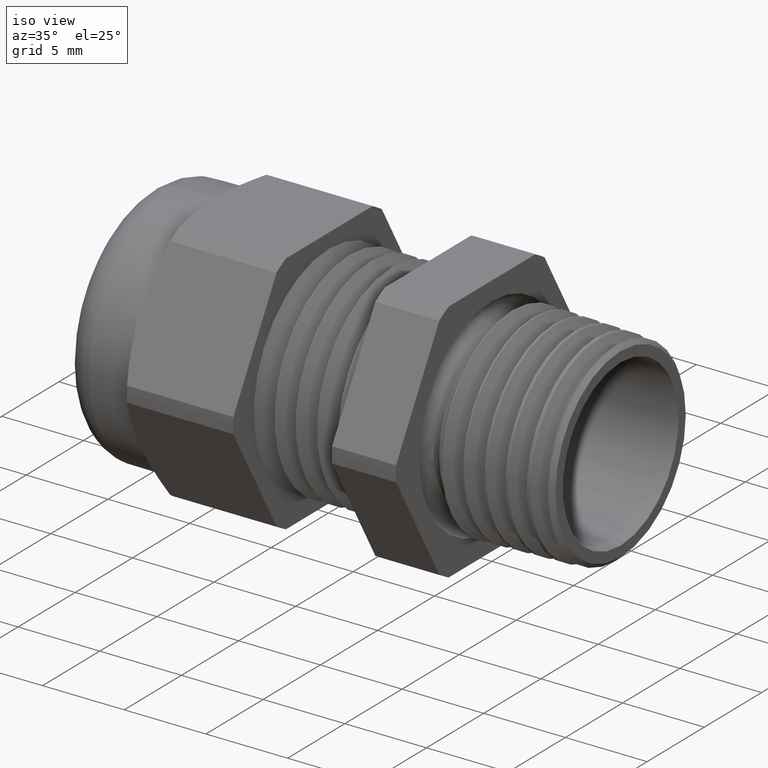
[diagram: clean part render]
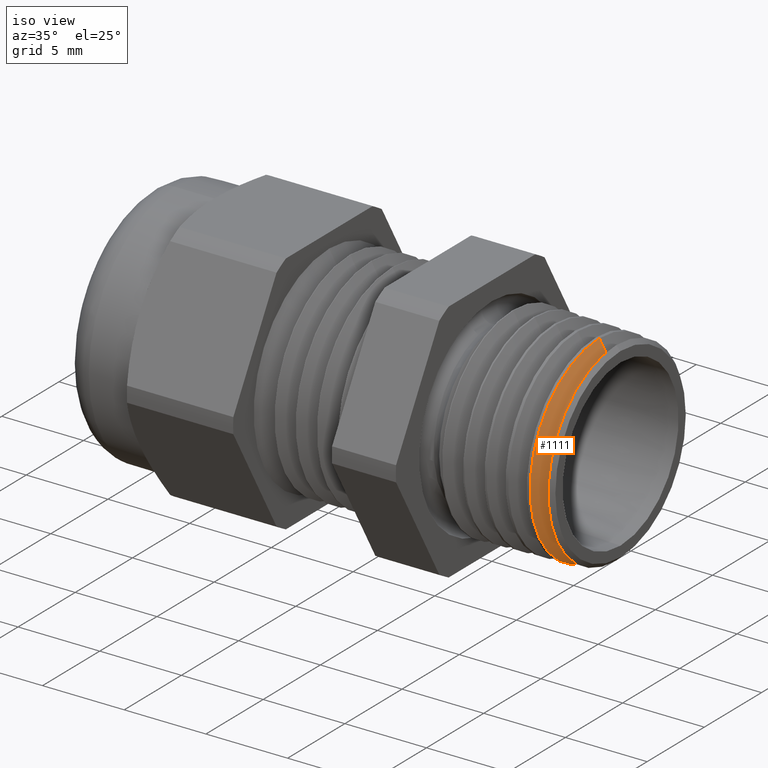
[diagram: same view with one face highlighted and labeled with its STEP entity id]
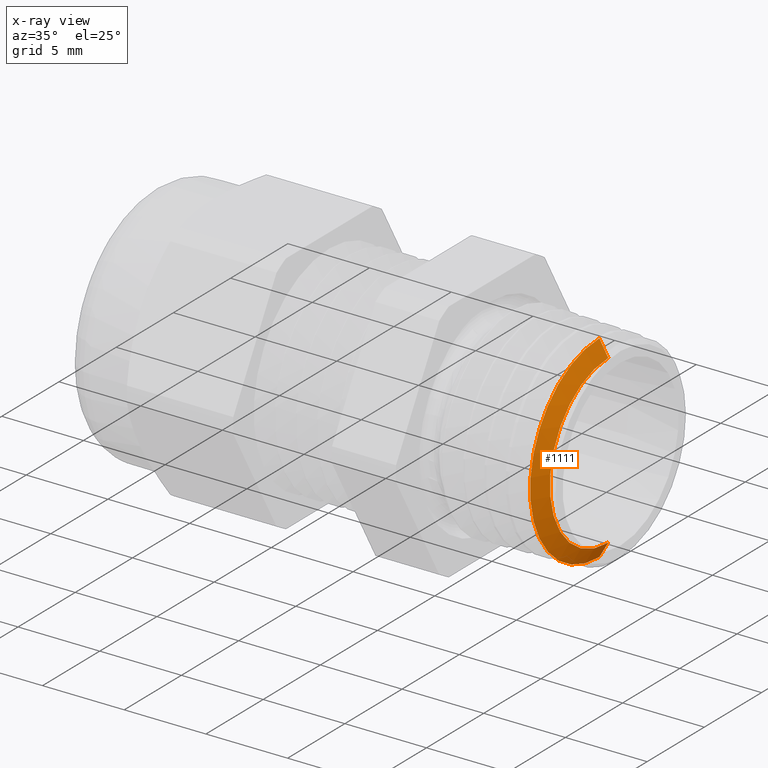
[diagram: x-ray of the same camera — body ghosted, the highlighted face saturated]
A machine part, iso view. The second image highlights one B-rep face of the part: STEP entity #1111.
The next image is the same camera in x-ray: the body ghosted, the highlighted face saturated — about 0% of this face is hidden behind the body in this view.
In plain terms, the highlighted conical surface has half-angle 60 deg.
Its self-contained STEP definition (entity closure, byte-faithful):
#62 = EDGE_CURVE ( 'NONE', #148, #63, #1327, .T. ) ;
#63 = VERTEX_POINT ( 'NONE', #1323 ) ;
#66 = VERTEX_POINT ( 'NONE', #1380 ) ;
#147 = VERTEX_POINT ( 'NONE', #1495 ) ;
#148 = VERTEX_POINT ( 'NONE', #1494 ) ;
#431 = EDGE_CURVE ( 'NONE', #147, #66, #2082, .T. ) ;
#554 = EDGE_CURVE ( 'NONE', #66, #63, #2288, .T. ) ;
#1111 = ADVANCED_FACE ( 'NONE', ( #3235 ), #3234, .T. ) ;
#1112 = EDGE_LOOP ( 'NONE', ( #1113, #1114, #1116, #1119 ) ) ;
#1113 = ORIENTED_EDGE ( 'NONE', *, *, #62, .F. ) ;
#1114 = ORIENTED_EDGE ( 'NONE', *, *, #1115, .T. ) ;
#1115 = EDGE_CURVE ( 'NONE', #148, #147, #3229, .T. ) ;
#1116 = ORIENTED_EDGE ( 'NONE', *, *, #431, .T. ) ;
#1119 = ORIENTED_EDGE ( 'NONE', *, *, #554, .T. ) ;
#1323 = CARTESIAN_POINT ( 'NONE',  ( 0.2589143838735094000, 2.918625249945247100E-017, -0.2382200882507539700 ) ) ;
#1324 = DIRECTION ( 'NONE',  ( -0.4999999999999958400, 1.060575238724909900E-016, -0.8660254037844409300 ) ) ;
#1325 = VECTOR ( 'NONE', #1324, 39.37007874015748100 ) ;
#1326 = CARTESIAN_POINT ( 'NONE',  ( 0.2550000000000003400, 3.000384657911014900E-017, -0.2450000000000000000 ) ) ;
#1327 = LINE ( 'NONE', #1326, #1325 ) ;
#1380 = CARTESIAN_POINT ( 'NONE',  ( 0.2589143838735094000, 0.0000000000000000000, 0.2382200882507539100 ) ) ;
#1494 = CARTESIAN_POINT ( 'NONE',  ( 0.2803924526490037000, 2.689563606499657500E-017, -0.2010189818831387100 ) ) ;
#1495 = CARTESIAN_POINT ( 'NONE',  ( 0.2803924526490037000, 0.0000000000000000000, 0.2010189818831387100 ) ) ;
#2079 = DIRECTION ( 'NONE',  ( -0.4999999999999958400, 0.0000000000000000000, 0.8660254037844409300 ) ) ;
#2080 = VECTOR ( 'NONE', #2079, 39.37007874015748100 ) ;
#2081 = CARTESIAN_POINT ( 'NONE',  ( 0.2550000000000003400, 0.0000000000000000000, 0.2450000000000000000 ) ) ;
#2082 = LINE ( 'NONE', #2081, #2080 ) ;
#2280 = DIRECTION ( 'NONE',  ( 0.0000000000000000000, 0.0000000000000000000, 1.000000000000000000 ) ) ;
#2281 = DIRECTION ( 'NONE',  ( 1.000000000000000000, 0.0000000000000000000, 0.0000000000000000000 ) ) ;
#2282 = CARTESIAN_POINT ( 'NONE',  ( 0.2589143838735094000, 0.0000000000000000000, 0.0000000000000000000 ) ) ;
#2283 = AXIS2_PLACEMENT_3D ( 'NONE', #2282, #2281, #2280 ) ;
#2288 = CIRCLE ( 'NONE', #2283, 0.2382200882507539100 ) ;
#3174 = CARTESIAN_POINT ( 'NONE',  ( 0.2550000000000003400, 0.0000000000000000000, 0.0000000000000000000 ) ) ;
#3226 = DIRECTION ( 'NONE',  ( 0.0000000000000000000, 0.0000000000000000000, 1.000000000000000000 ) ) ;
#3227 = DIRECTION ( 'NONE',  ( -1.000000000000000000, 0.0000000000000000000, 0.0000000000000000000 ) ) ;
#3228 = AXIS2_PLACEMENT_3D ( 'NONE', #3233, #3227, #3226 ) ;
#3229 = CIRCLE ( 'NONE', #3228, 0.2010189818831387100 ) ;
#3230 = DIRECTION ( 'NONE',  ( 0.0000000000000000000, 0.0000000000000000000, 1.000000000000000000 ) ) ;
#3231 = DIRECTION ( 'NONE',  ( -1.000000000000000000, 0.0000000000000000000, 0.0000000000000000000 ) ) ;
#3232 = AXIS2_PLACEMENT_3D ( 'NONE', #3174, #3231, #3230 ) ;
#3233 = CARTESIAN_POINT ( 'NONE',  ( 0.2803924526490037000, 0.0000000000000000000, 0.0000000000000000000 ) ) ;
#3234 = CONICAL_SURFACE ( 'NONE', #3232, 0.2450000000000000000, 1.047197551196602500 ) ;
#3235 = FACE_OUTER_BOUND ( 'NONE', #1112, .T. ) ;